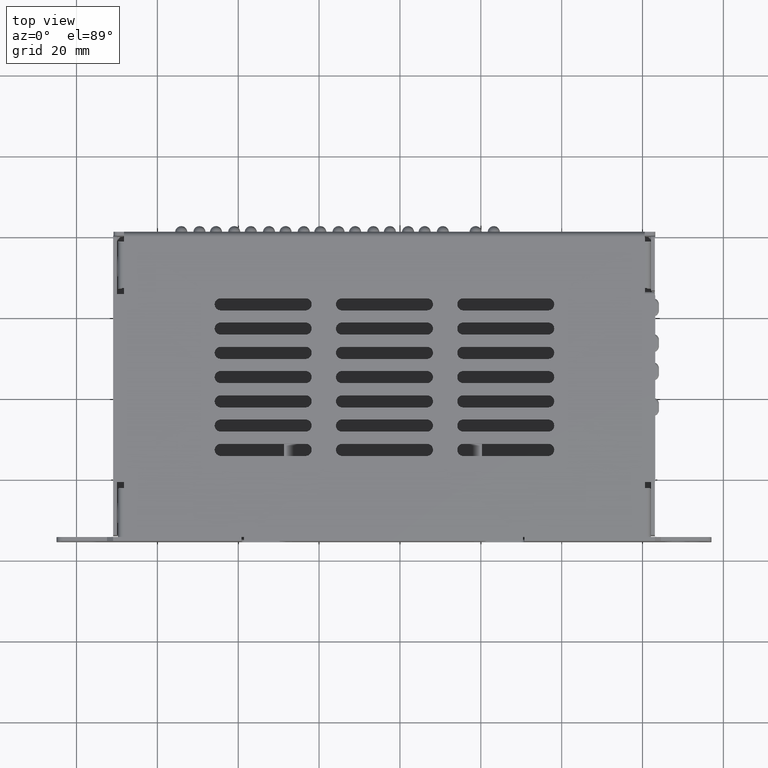
[diagram: clean part render]
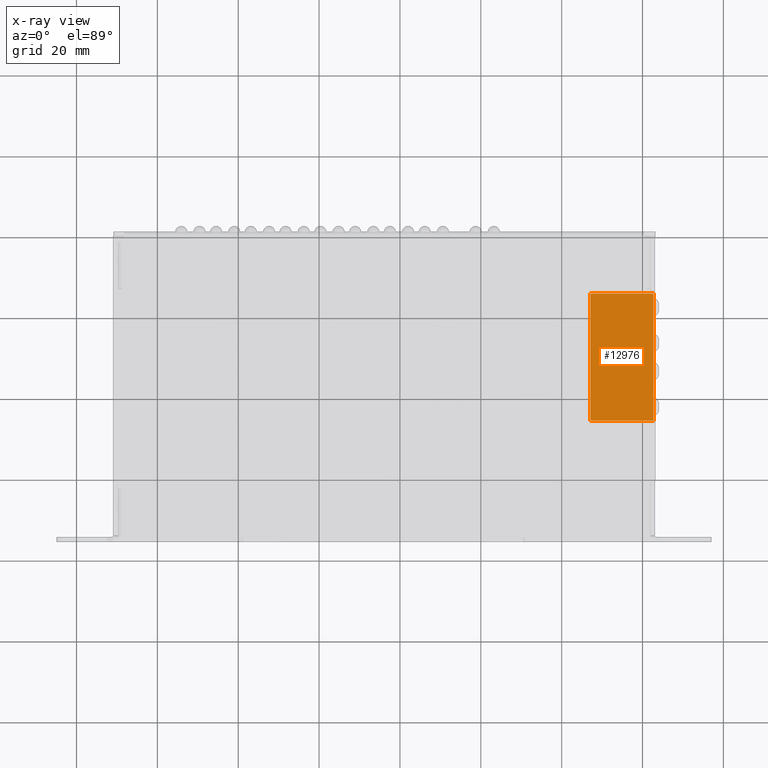
[diagram: x-ray — body ghosted, one internal face saturated and labeled with its STEP entity id]
A machine part, top view, then the same camera in x-ray: the body is ghosted and one INTERNAL B-rep face — a face not visible from any outside direction — is saturated and labeled: STEP entity #12976.
In plain terms, the highlighted planar face has unit normal (0, 0, 1).
Its self-contained STEP definition (entity closure, byte-faithful):
#12919 = ORIENTED_EDGE ( 'NONE', *, *, #12933, .T. ) ;
#12932 = VERTEX_POINT ( 'NONE', #27351 ) ;
#12933 = EDGE_CURVE ( 'NONE', #12946, #12934, #27346, .T. ) ;
#12934 = VERTEX_POINT ( 'NONE', #27345 ) ;
#12938 = EDGE_CURVE ( 'NONE', #12946, #12945, #27340, .T. ) ;
#12945 = VERTEX_POINT ( 'NONE', #27388 ) ;
#12946 = VERTEX_POINT ( 'NONE', #27390 ) ;
#12976 = ADVANCED_FACE ( 'NONE', ( #27423 ), #27405, .T. ) ;
#12979 = ORIENTED_EDGE ( 'NONE', *, *, #12938, .F. ) ;
#12980 = ORIENTED_EDGE ( 'NONE', *, *, #12984, .T. ) ;
#12981 = ORIENTED_EDGE ( 'NONE', *, *, #12982, .T. ) ;
#12982 = EDGE_CURVE ( 'NONE', #12934, #12932, #27432, .T. ) ;
#12984 = EDGE_CURVE ( 'NONE', #12932, #12945, #27428, .T. ) ;
#12988 = EDGE_LOOP ( 'NONE', ( #12979, #12919, #12981, #12980 ) ) ;
#27337 = DIRECTION ( 'NONE',  ( -0.0000000000000000000, 1.000000000000000000, -0.0000000000000000000 ) ) ;
#27338 = VECTOR ( 'NONE', #27337, 1000.000000000000000 ) ;
#27339 = CARTESIAN_POINT ( 'NONE',  ( 7.175000000000000700, 16.01000000000000200, 0.0000000000000000000 ) ) ;
#27340 = LINE ( 'NONE', #27339, #27338 ) ;
#27342 = DIRECTION ( 'NONE',  ( -1.000000000000000000, -0.0000000000000000000, -0.0000000000000000000 ) ) ;
#27343 = VECTOR ( 'NONE', #27342, 1000.000000000000000 ) ;
#27344 = CARTESIAN_POINT ( 'NONE',  ( -8.824999999999999300, -15.71000000000000100, 0.0000000000000000000 ) ) ;
#27345 = CARTESIAN_POINT ( 'NONE',  ( -8.525000000000000400, -15.71000000000000100, 0.0000000000000000000 ) ) ;
#27346 = LINE ( 'NONE', #27344, #27343 ) ;
#27351 = CARTESIAN_POINT ( 'NONE',  ( -8.525000000000000400, 15.71000000000000100, 0.0000000000000000000 ) ) ;
#27388 = CARTESIAN_POINT ( 'NONE',  ( 7.175000000000000700, 15.71000000000000100, 0.0000000000000000000 ) ) ;
#27390 = CARTESIAN_POINT ( 'NONE',  ( 7.175000000000000700, -15.70999999999999900, 0.0000000000000000000 ) ) ;
#27405 = PLANE ( 'NONE',  #27442 ) ;
#27423 = FACE_OUTER_BOUND ( 'NONE', #12988, .T. ) ;
#27424 = DIRECTION ( 'NONE',  ( 1.000000000000000000, -0.0000000000000000000, -0.0000000000000000000 ) ) ;
#27425 = VECTOR ( 'NONE', #27424, 1000.000000000000000 ) ;
#27426 = CARTESIAN_POINT ( 'NONE',  ( 7.175000000000000700, 15.71000000000000100, 0.0000000000000000000 ) ) ;
#27428 = LINE ( 'NONE', #27426, #27425 ) ;
#27429 = DIRECTION ( 'NONE',  ( -0.0000000000000000000, 1.000000000000000000, -0.0000000000000000000 ) ) ;
#27430 = VECTOR ( 'NONE', #27429, 1000.000000000000000 ) ;
#27431 = CARTESIAN_POINT ( 'NONE',  ( -8.525000000000000400, 16.01000000000000200, 0.0000000000000000000 ) ) ;
#27432 = LINE ( 'NONE', #27431, #27430 ) ;
#27434 = DIRECTION ( 'NONE',  ( -1.000000000000000000, 0.0000000000000000000, -0.0000000000000000000 ) ) ;
#27435 = DIRECTION ( 'NONE',  ( 0.0000000000000000000, 0.0000000000000000000, -1.000000000000000000 ) ) ;
#27441 = CARTESIAN_POINT ( 'NONE',  ( 0.0000000000000000000, 0.0000000000000000000, 0.0000000000000000000 ) ) ;
#27442 = AXIS2_PLACEMENT_3D ( 'NONE', #27441, #27435, #27434 ) ;